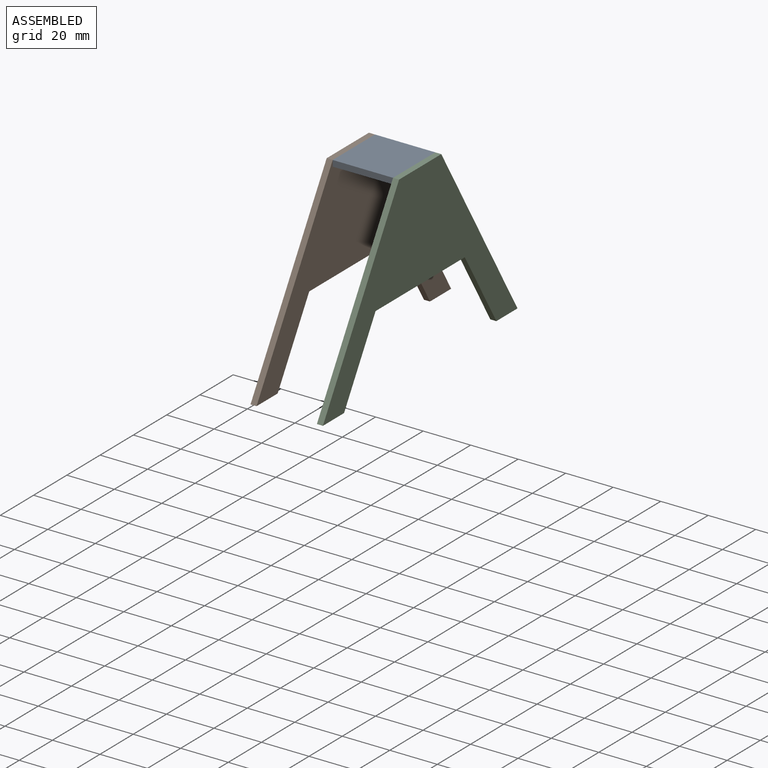
[diagram: assembled view]
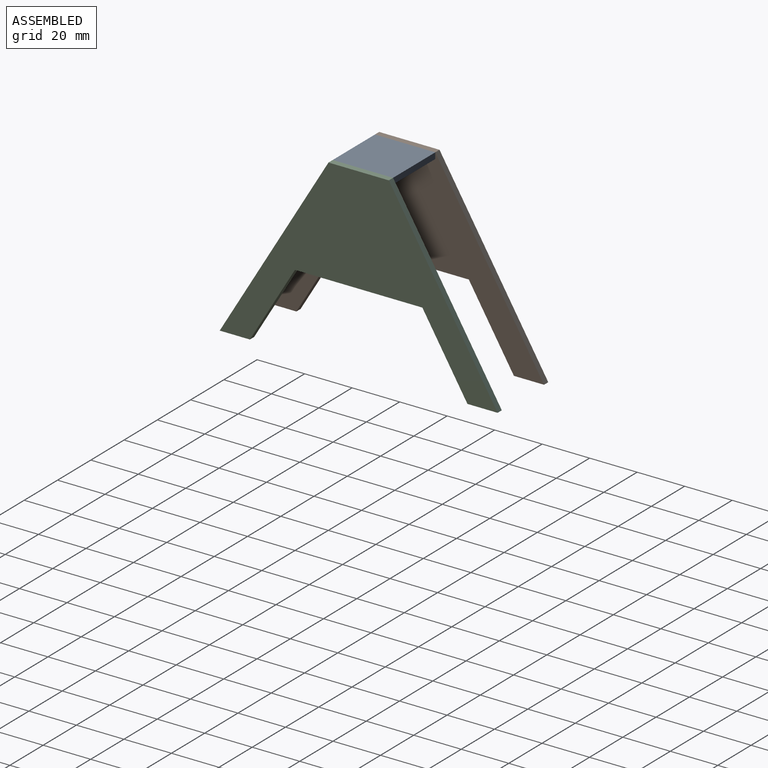
[diagram: assembled view, second angle]
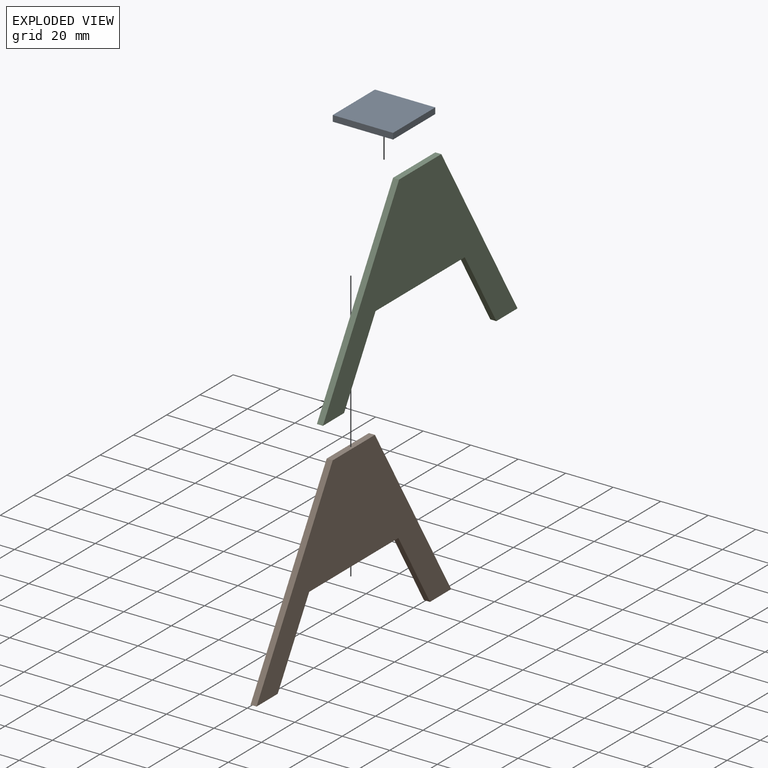
[diagram: exploded view]
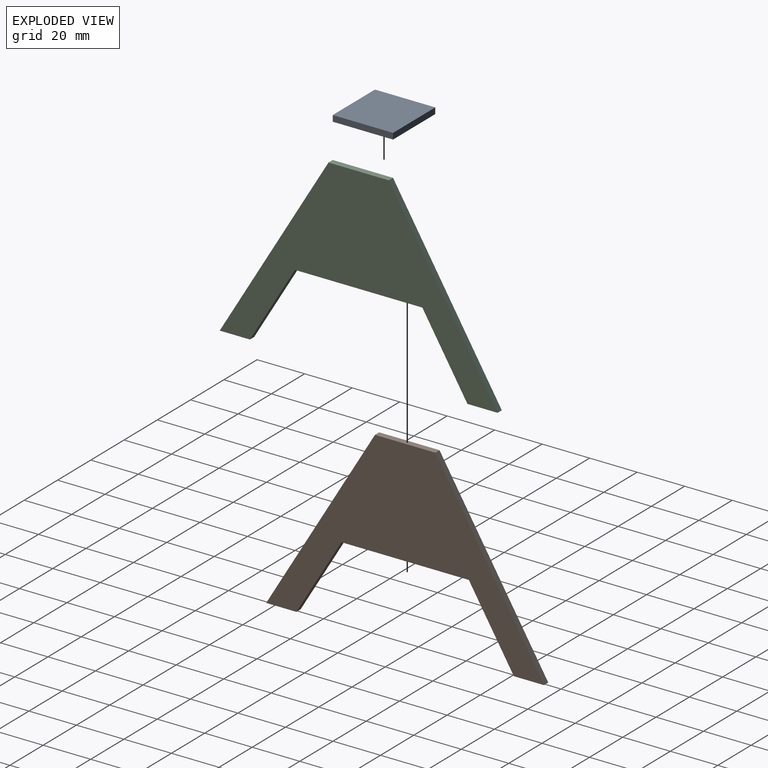
[diagram: exploded view, second angle]
ASSEMBLY  parts=3 mates=2
PART A: 6 faces, bbox 25.4x25.4x2.5 mm
  f0: plane 25.4x2.54mm, normal (1,0,0), area 64.5mm2, adj f1,f3,f4,f5
  f1: plane 25.4x2.54mm, normal (0,1,0), area 64.5mm2, adj f0,f2,f4,f5
  f2: plane 25.4x2.54mm, normal (-1,0,0), area 64.5mm2, adj f1,f3,f4,f5
  f3: plane 25.4x2.54mm, normal (0,-1,0), area 64.5mm2, adj f0,f2,f4,f5
  f4: plane 25.4x25.4mm, normal (0,0,1), area 645.2mm2, adj f0,f1,f2,f3
  f5: plane 25.4x25.4mm, normal (0,0,-1), area 645.2mm2, adj f0,f1,f2,f3
PART B: 10 faces, bbox 2.5x117x76.2 mm
  f0: plane 25.4x2.54mm, normal (0,0,1), area 64.5mm2, adj f1,f7,f8,f9
  f1: plane 76.2x45.79mm, normal (0,-0.86,0.52), area 225.8mm2, adj f0,f2,f8,f9
  f2: plane 12.7x2.54mm, normal (0,0,-1), area 32.3mm2, adj f1,f3,f8,f9
  f3: plane 31.57x18.97mm, normal (0,0.86,-0.52), area 93.5mm2, adj f2,f4,f8,f9
  f4: plane 53.64x2.54mm, normal (0,0,-1), area 136.2mm2, adj f3,f5,f8,f9
  f5: plane 31.57x18.97mm, normal (0,-0.86,-0.52), area 93.5mm2, adj f4,f6,f8,f9
  f6: plane 12.7x2.54mm, normal (0,0,-1), area 32.3mm2, adj f5,f7,f8,f9
  f7: plane 76.2x45.79mm, normal (0,0.86,0.52), area 225.8mm2, adj f0,f6,f8,f9
  f8: plane 116.98x76.2mm, normal (1,0,0), area 3132.5mm2, adj f0,f1,f2,f3,f4,f5,f6,f7
  f9: plane 116.98x76.2mm, normal (-1,0,0), area 3132.5mm2, adj f0,f1,f2,f3,f4,f5,f6,f7
PART C: same geometry as B
PLACE A t=(17.27,-2.43,4.86)mm
PLACE B rot(axis=(0,0,1),180deg) t=(4.57,-2.43,7.4)mm
PLACE C t=(29.97,-2.43,7.4)mm
MATE fastened B.f0 <-> A.f4  axis (0,0,1) through (4.57,-2.43,7.4)mm
MATE fastened A.f4 <-> C.f0  axis (0,0,1) through (29.97,-2.43,7.4)mm
